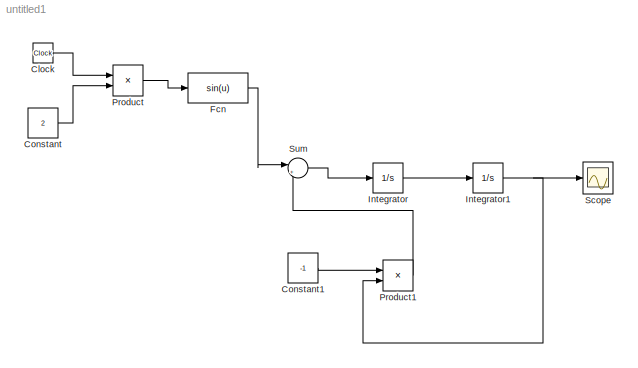
MODEL untitled1
KIND model
BLOCK [Clock] Clock
  Decimation = 10
  SID = 1
BLOCK [Constant] Constant
  OutDataType = fixdt(1, 16)
  OutScaling = 2^0
  SID = 2
  Value = 2
BLOCK [Constant] Constant1
  OutDataType = fixdt(1, 16)
  OutScaling = 2^0
  SID = 9
  Value = -1
BLOCK [Fcn] Fcn
  Expr = sin(u)
  SID = 4
BLOCK [Integrator] Integrator
  Ports = [1, 1]
  SID = 7
BLOCK [Integrator] Integrator1
  Ports = [1, 1]
  SID = 8
BLOCK [Product] Product
  InputSameDT = off
  OutDataType = fixdt(1, 16)
  OutDataTypeMode = Inherit via internal rule
  OutDataTypeStr = Inherit: Inherit via internal rule
  OutScaling = 2^0
  Ports = [2, 1]
  SID = 3
  SaturateOnIntegerOverflow = off
BLOCK [Product] Product1
  InputSameDT = off
  OutDataType = fixdt(1, 16)
  OutDataTypeMode = Inherit via internal rule
  OutDataTypeStr = Inherit: Inherit via internal rule
  OutScaling = 2^0
  Ports = [2, 1]
  SID = 10
  SaturateOnIntegerOverflow = off
BLOCK [Scope] Scope
  DataFormat = StructureWithTime
  Floating = off
  NumInputPorts = 1
  Ports = [1]
  SID = 6
  SampleTime = 0
BLOCK [Sum] Sum
  IconShape = round
  InputSameDT = off
  Inputs = |++
  OutDataType = fixdt(1, 16)
  OutDataTypeMode = Inherit via internal rule
  OutDataTypeStr = Inherit: Inherit via internal rule
  OutScaling = 2^0
  Ports = [2, 1]
  SID = 5
  SaturateOnIntegerOverflow = off
LINE Clock:1 -> Product:1
LINE Constant1:1 -> Product1:1
LINE Constant:1 -> Product:2
LINE Fcn:1 -> Sum:1
NET Integrator1:1 -> Product1:2, Scope:1
LINE Integrator:1 -> Integrator1:1
LINE Product1:1 -> Sum:2
LINE Product:1 -> Fcn:1
LINE Sum:1 -> Integrator:1
note: NET lines group one-source signal fan-out (src -> all destinations, sorted); 1:1 wires keep LINE
